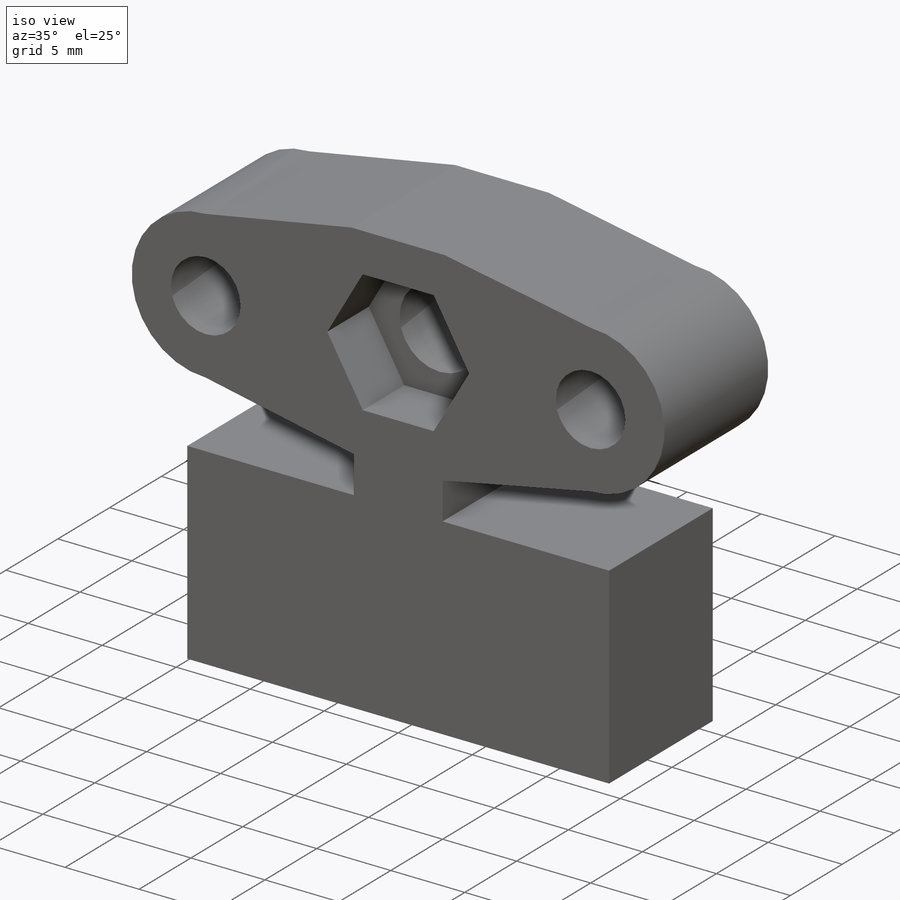
[diagram: iso view]
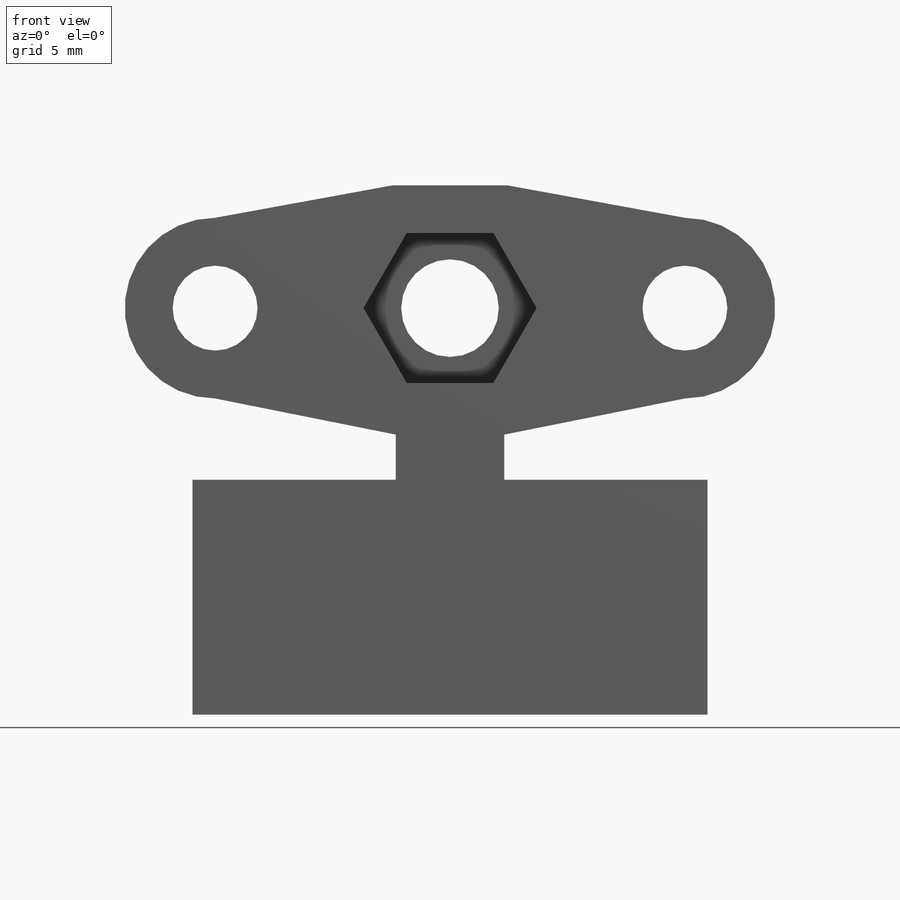
[diagram: front view]
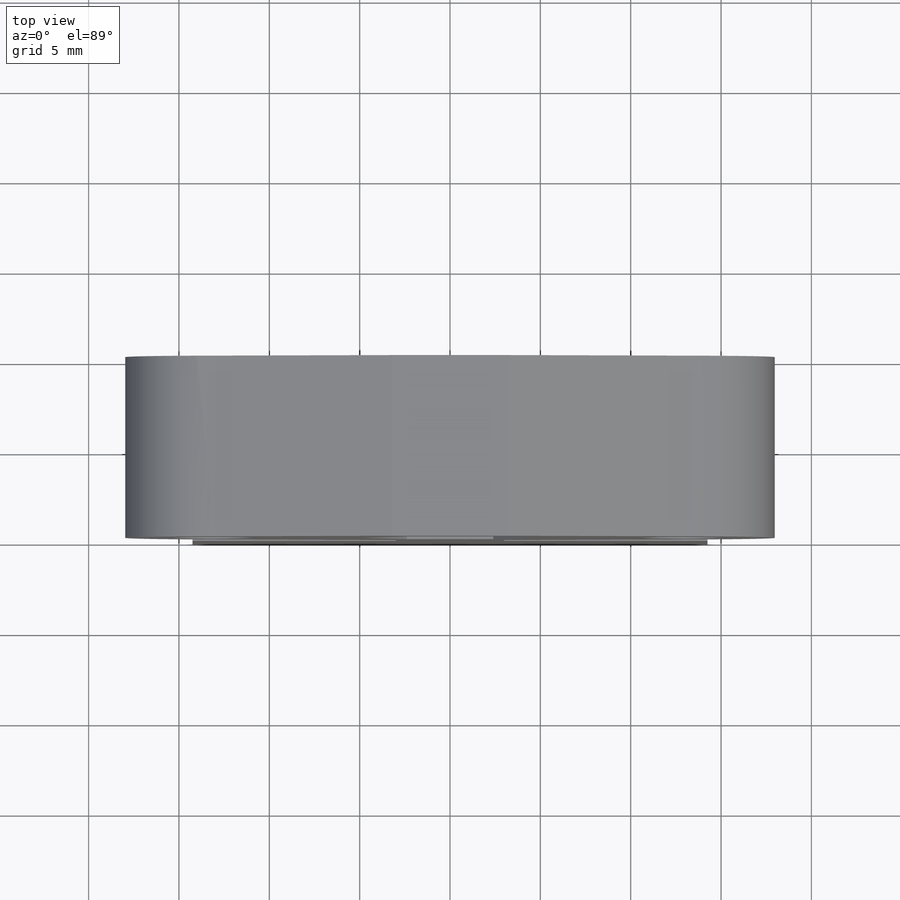
[diagram: top view]
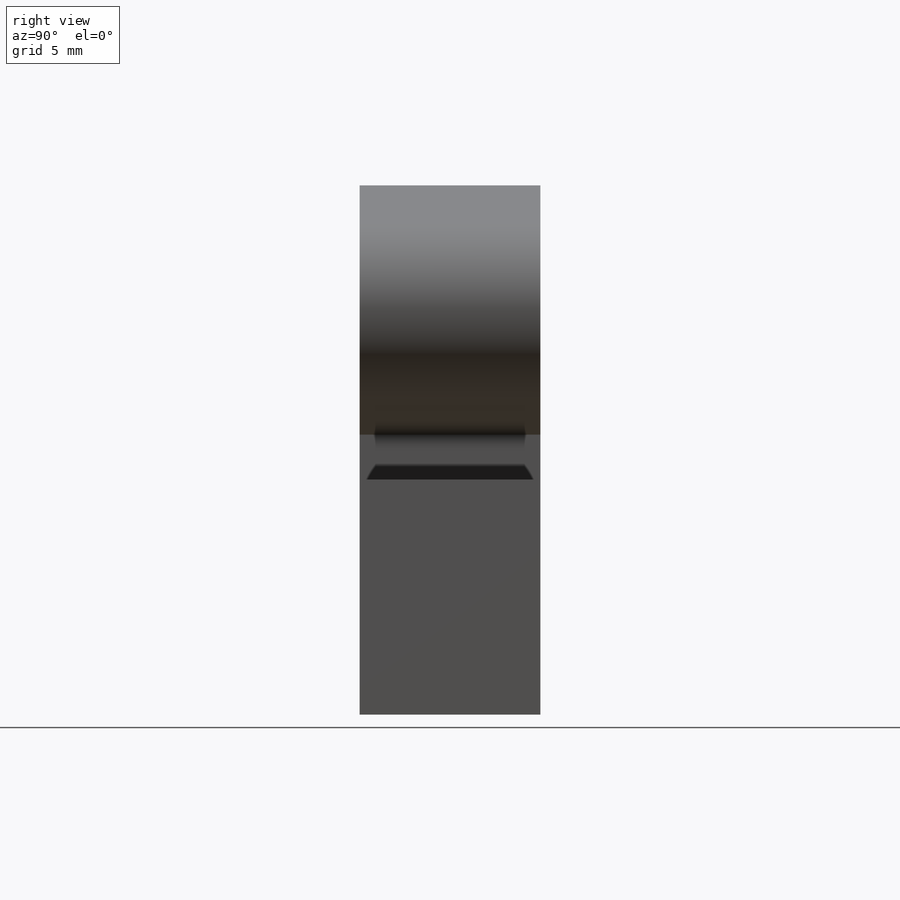
[diagram: right view]
SOLIDWORKS PART (.sldprt)
format: sldprt  version: not decoded by parser v0  size: 221,696 bytes
history: native  units: mm
features: plane x3, sketch x3, extrude x2, material x1, cut_extrude x1 (+10 scaffold rows collapsed)
feature tree (20):
  scaffold x10  (default folders/planes/origin — collapsed)
  material  "Matériau <non spécifié>"
  plane  "Plan de face"
  plane  "Plan de dessus"
  plane  "Plan de droite"
  sketch  "Esquisse1"  dims[c1.D7=5.4mm c1.D8=8.3mm c1.D11=4.7mm c1.D12=10.0mm c1.D13=15.0mm c1.D1=13.0mm c1.D2=28.5mm c1.D3=6.0mm c1.D4=2.5mm c2.D3=6.0mm c2.D4=2.5mm c2.D5=3.0mm c2.D6=12.5mm c2.D9=~32.723926mm c3.D9=30.0deg c3.D10=33.0mm c3.D12=16.5mm c4.D10=13.0mm c4.D14=7.5mm c5.D14=50.0deg]
  extrude  "forme principale"  Depth=10mm
  extrude  "ecrou"  [1 undecoded]
  sketch  "Esquisse1<5>"  dims[D1=6.0mm]
  sketch  "Esquisse3"  dims[D3=1.7mm D1=3.0mm D2=9.7mm D4=5.0mm D5=10.0mm]
  cut_extrude  "vis"  Depth=8mm
decode coverage: 5 of 6 modeling features carry decoded parameters
note: ~ marks probable driven/reference dimensions
note: 1 parameter value undecoded
note: suppression state not decoded; provenance and decode notes live in map.json
